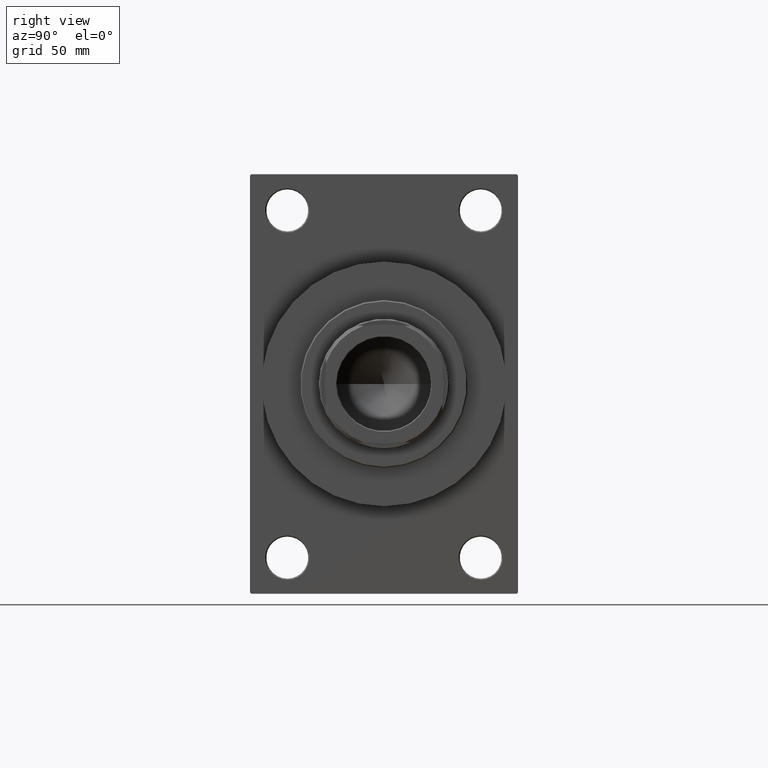
[diagram: clean part render]
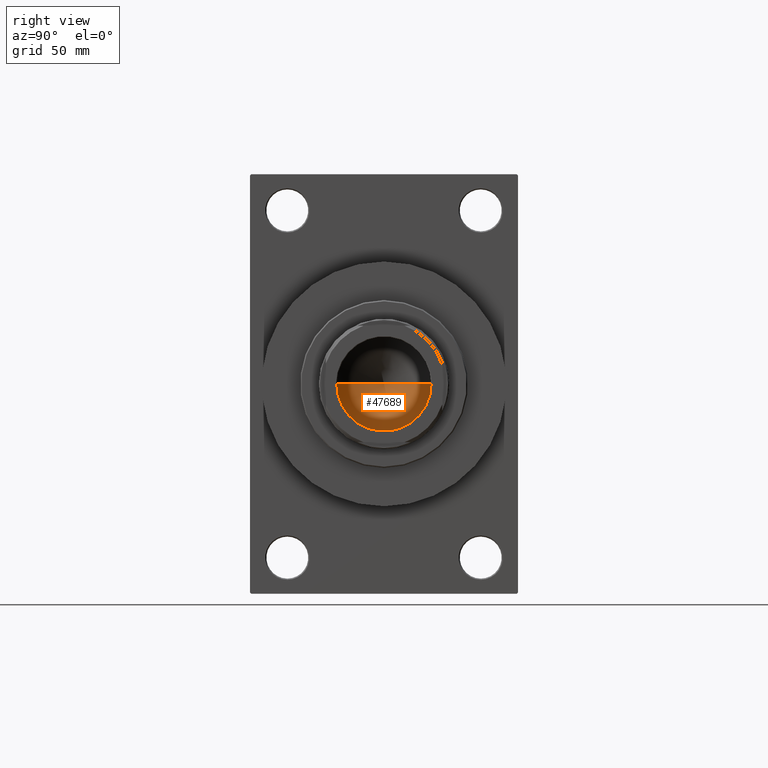
[diagram: same view with one face highlighted and labeled with its STEP entity id]
A machine part, right view. The second image highlights one B-rep face of the part: STEP entity #47689.
In plain terms, the highlighted conical surface has half-angle 59 deg.
Its self-contained STEP definition (entity closure, byte-faithful):
#124 = EDGE_LOOP ( 'NONE', ( #40868, #37031, #26795 ) ) ;
#3364 = CONICAL_SURFACE ( 'NONE', #36475, 20.24999999999998934, 1.029744258676653867 ) ;
#5561 = AXIS2_PLACEMENT_3D ( 'NONE', #9356, #45057, #38549 ) ;
#8522 = DIRECTION ( 'NONE',  ( 0.8571673007021120005, 0.000000000000000000, 0.5150380749100547106 ) ) ;
#8720 = VERTEX_POINT ( 'NONE', #12265 ) ;
#9356 = CARTESIAN_POINT ( 'NONE',  ( 0.000000000000000000, 0.000000000000000000, 105.0000000000000142 ) ) ;
#12265 = CARTESIAN_POINT ( 'NONE',  ( 20.24999999999998934, 0.000000000000000000, 105.0000000000000142 ) ) ;
#12293 = CARTESIAN_POINT ( 'NONE',  ( -1.844323935812429270E-14, 0.000000000000000000, 92.83257246469190704 ) ) ;
#12302 = LINE ( 'NONE', #37884, #25697 ) ;
#12510 = EDGE_CURVE ( 'NONE', #21278, #8720, #38194, .T. ) ;
#13855 = EDGE_CURVE ( 'NONE', #8720, #45917, #45584, .T. ) ;
#13981 = VECTOR ( 'NONE', #8522, 1000.000000000000000 ) ;
#15764 = FACE_OUTER_BOUND ( 'NONE', #124, .T. ) ;
#16465 = CARTESIAN_POINT ( 'NONE',  ( 20.24999999999998934, 0.000000000000000000, 105.0000000000000142 ) ) ;
#19367 = DIRECTION ( 'NONE',  ( -0.000000000000000000, -0.000000000000000000, 1.000000000000000000 ) ) ;
#21278 = VERTEX_POINT ( 'NONE', #12293 ) ;
#22266 = EDGE_CURVE ( 'NONE', #21278, #45917, #12302, .T. ) ;
#25697 = VECTOR ( 'NONE', #42196, 1000.000000000000000 ) ;
#26795 = ORIENTED_EDGE ( 'NONE', *, *, #13855, .T. ) ;
#33851 = CARTESIAN_POINT ( 'NONE',  ( 0.000000000000000000, 0.000000000000000000, 105.0000000000000142 ) ) ;
#36271 = CARTESIAN_POINT ( 'NONE',  ( -20.24999999999998934, 2.479909768273389117E-15, 105.0000000000000142 ) ) ;
#36475 = AXIS2_PLACEMENT_3D ( 'NONE', #33851, #19367, #42048 ) ;
#37031 = ORIENTED_EDGE ( 'NONE', *, *, #12510, .T. ) ;
#37884 = CARTESIAN_POINT ( 'NONE',  ( -20.24999999999998934, 2.479909768273389117E-15, 105.0000000000000142 ) ) ;
#38194 = LINE ( 'NONE', #16465, #13981 ) ;
#38549 = DIRECTION ( 'NONE',  ( 1.000000000000000000, 0.000000000000000000, 0.000000000000000000 ) ) ;
#40868 = ORIENTED_EDGE ( 'NONE', *, *, #22266, .F. ) ;
#42048 = DIRECTION ( 'NONE',  ( 1.000000000000000000, 0.000000000000000000, 0.000000000000000000 ) ) ;
#42196 = DIRECTION ( 'NONE',  ( -0.8571673007021120005, 1.049727191138618326E-16, 0.5150380749100547106 ) ) ;
#45057 = DIRECTION ( 'NONE',  ( -0.000000000000000000, -0.000000000000000000, 1.000000000000000000 ) ) ;
#45584 = CIRCLE ( 'NONE', #5561, 20.24999999999998934 ) ;
#45917 = VERTEX_POINT ( 'NONE', #36271 ) ;
#47689 = ADVANCED_FACE ( 'NONE', ( #15764 ), #3364, .F. ) ;